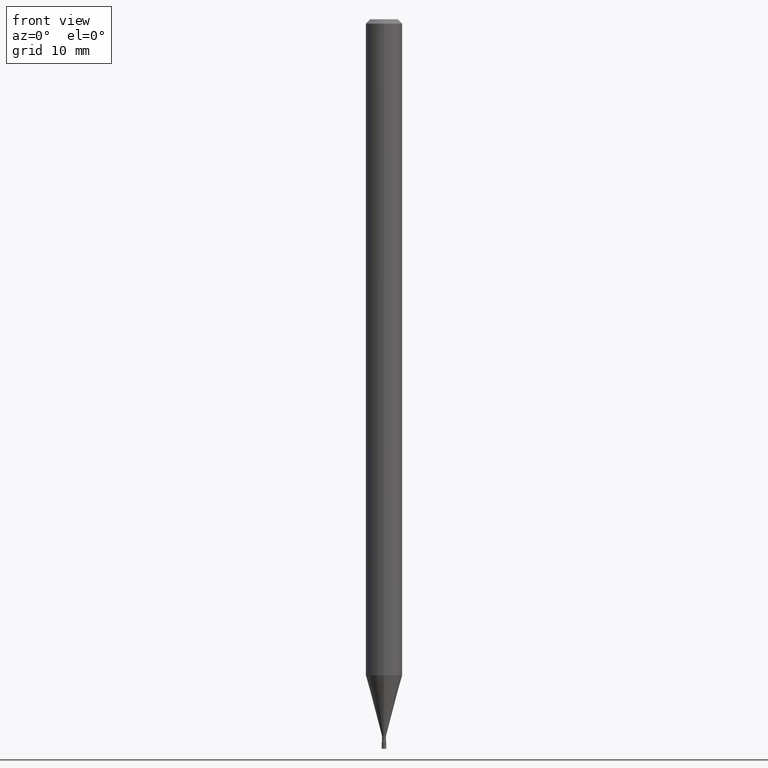
[diagram: clean part render]
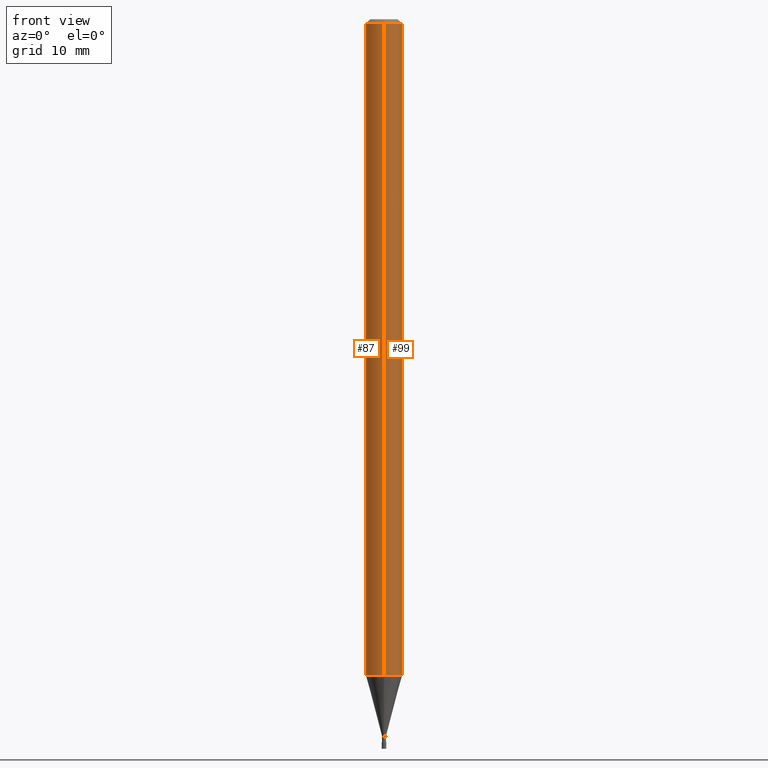
[diagram: same view with one multi-face feature highlighted, each face labeled with its STEP entity id]
A machine part, front view. The highlighted faces form ONE feature: a constant-radius fillet chain: 2 tangent blend faces with common blend radius 1.5875 mm. The faces share edges in the B-rep.
Their STEP definitions:
[1] entity #99 (Cylinder):
#3 = CARTESIAN_POINT ( 'NONE',  ( 4.440892098501173434E-16, 0.06249999999999213823, -2.248057782720306985 ) ) ;
#6 = CYLINDRICAL_SURFACE ( 'NONE', #94, 0.06250000000000000000 ) ;
#13 = CARTESIAN_POINT ( 'NONE',  ( 3.668098246410186119E-31, -5.237372321065141338E-17, -0.01500000000000003067 ) ) ;
#44 = DIRECTION ( 'NONE',  ( -2.445398830940119210E-29, 3.491581547376753841E-15, 1.000000000000000000 ) ) ;
#48 = DIRECTION ( 'NONE',  ( -2.445398830940119210E-29, 3.491581547376753841E-15, 1.000000000000000000 ) ) ;
#54 = ORIENTED_EDGE ( 'NONE', *, *, #194, .F. ) ;
#83 = DIRECTION ( 'NONE',  ( -6.982962677686265922E-15, -1.000000000000000000, 3.483106191921935554E-15 ) ) ;
#89 = VERTEX_POINT ( 'NONE', #444 ) ;
#94 = AXIS2_PLACEMENT_3D ( 'NONE', #329, #44, #201 ) ;
#96 = VECTOR ( 'NONE', #493, 39.37007874015748143 ) ;
#99 = ADVANCED_FACE ( 'NONE', ( #363 ), #6, .T. ) ;
#103 = VERTEX_POINT ( 'NONE', #3 ) ;
#115 = EDGE_LOOP ( 'NONE', ( #347, #348, #54, #239 ) ) ;
#119 = EDGE_CURVE ( 'NONE', #89, #103, #459, .T. ) ;
#135 = CIRCLE ( 'NONE', #142, 0.06250000000000000000 ) ;
#142 = AXIS2_PLACEMENT_3D ( 'NONE', #13, #211, #83 ) ;
#174 = EDGE_CURVE ( 'NONE', #89, #396, #447, .T. ) ;
#194 = EDGE_CURVE ( 'NONE', #396, #281, #135, .T. ) ;
#200 = EDGE_CURVE ( 'NONE', #103, #281, #412, .T. ) ;
#201 = DIRECTION ( 'NONE',  ( -6.982962677686265922E-15, -1.000000000000000000, 3.491581547376753447E-15 ) ) ;
#205 = AXIS2_PLACEMENT_3D ( 'NONE', #238, #278, #435 ) ;
#211 = DIRECTION ( 'NONE',  ( -2.445398830940119210E-29, 3.491581547376753841E-15, 1.000000000000000000 ) ) ;
#238 = CARTESIAN_POINT ( 'NONE',  ( 5.497397873750074245E-29, -7.849277071582922133E-15, -2.248057782720306541 ) ) ;
#239 = ORIENTED_EDGE ( 'NONE', *, *, #174, .F. ) ;
#278 = DIRECTION ( 'NONE',  ( -2.445398830940119210E-29, 3.491581547376753841E-15, 1.000000000000000000 ) ) ;
#281 = VERTEX_POINT ( 'NONE', #416 ) ;
#329 = CARTESIAN_POINT ( 'NONE',  ( 0.000000000000000000, 0.000000000000000000, 0.000000000000000000 ) ) ;
#331 = CARTESIAN_POINT ( 'NONE',  ( -4.364351673553916201E-16, -0.06250000000000000000, 2.182238467110470904E-16 ) ) ;
#334 = CARTESIAN_POINT ( 'NONE',  ( 4.440892098500625669E-16, 0.06250000000000000000, -2.182238467110470904E-16 ) ) ;
#347 = ORIENTED_EDGE ( 'NONE', *, *, #119, .T. ) ;
#348 = ORIENTED_EDGE ( 'NONE', *, *, #200, .T. ) ;
#363 = FACE_OUTER_BOUND ( 'NONE', #115, .T. ) ;
#396 = VERTEX_POINT ( 'NONE', #413 ) ;
#412 = LINE ( 'NONE', #334, #96 ) ;
#413 = CARTESIAN_POINT ( 'NONE',  ( -4.364351673553912750E-16, -0.06250000000000005551, -0.01499999999999981209 ) ) ;
#416 = CARTESIAN_POINT ( 'NONE',  ( 4.440892098501179350E-16, 0.06249999999999995837, -0.01500000000000024751 ) ) ;
#435 = DIRECTION ( 'NONE',  ( -6.982962677686265922E-15, -1.000000000000000000, 4.370956789862821150E-15 ) ) ;
#444 = CARTESIAN_POINT ( 'NONE',  ( -4.364351673553366464E-16, -0.06250000000000784095, -2.248057782720306097 ) ) ;
#445 = VECTOR ( 'NONE', #48, 39.37007874015748143 ) ;
#447 = LINE ( 'NONE', #331, #445 ) ;
#459 = CIRCLE ( 'NONE', #205, 0.06250000000000000000 ) ;
#493 = DIRECTION ( 'NONE',  ( -2.445398830940119210E-29, 3.491581547376753841E-15, 1.000000000000000000 ) ) ;
[2] entity #87 (Cylinder):
#3 = CARTESIAN_POINT ( 'NONE',  ( 4.440892098501173434E-16, 0.06249999999999213823, -2.248057782720306985 ) ) ;
#4 = DIRECTION ( 'NONE',  ( -6.982962677686265922E-15, -1.000000000000000000, 4.370956789862821150E-15 ) ) ;
#10 = AXIS2_PLACEMENT_3D ( 'NONE', #248, #484, #4 ) ;
#45 = DIRECTION ( 'NONE',  ( -2.445398830940119210E-29, 3.491581547376753841E-15, 1.000000000000000000 ) ) ;
#47 = ORIENTED_EDGE ( 'NONE', *, *, #154, .F. ) ;
#48 = DIRECTION ( 'NONE',  ( -2.445398830940119210E-29, 3.491581547376753841E-15, 1.000000000000000000 ) ) ;
#78 = CARTESIAN_POINT ( 'NONE',  ( 3.668098246410186119E-31, -5.237372321065141338E-17, -0.01500000000000003067 ) ) ;
#87 = ADVANCED_FACE ( 'NONE', ( #112 ), #405, .T. ) ;
#89 = VERTEX_POINT ( 'NONE', #444 ) ;
#96 = VECTOR ( 'NONE', #493, 39.37007874015748143 ) ;
#103 = VERTEX_POINT ( 'NONE', #3 ) ;
#112 = FACE_OUTER_BOUND ( 'NONE', #414, .T. ) ;
#150 = CIRCLE ( 'NONE', #290, 0.06250000000000000000 ) ;
#154 = EDGE_CURVE ( 'NONE', #281, #396, #150, .T. ) ;
#156 = DIRECTION ( 'NONE',  ( -2.445398830940119210E-29, 3.491581547376753841E-15, 1.000000000000000000 ) ) ;
#173 = ORIENTED_EDGE ( 'NONE', *, *, #174, .T. ) ;
#174 = EDGE_CURVE ( 'NONE', #89, #396, #447, .T. ) ;
#184 = AXIS2_PLACEMENT_3D ( 'NONE', #204, #156, #400 ) ;
#200 = EDGE_CURVE ( 'NONE', #103, #281, #412, .T. ) ;
#204 = CARTESIAN_POINT ( 'NONE',  ( 0.000000000000000000, 0.000000000000000000, 0.000000000000000000 ) ) ;
#217 = EDGE_CURVE ( 'NONE', #103, #89, #382, .T. ) ;
#240 = DIRECTION ( 'NONE',  ( -6.982962677686265922E-15, -1.000000000000000000, 3.483106191921935554E-15 ) ) ;
#248 = CARTESIAN_POINT ( 'NONE',  ( 5.497397873750074245E-29, -7.849277071582922133E-15, -2.248057782720306541 ) ) ;
#281 = VERTEX_POINT ( 'NONE', #416 ) ;
#290 = AXIS2_PLACEMENT_3D ( 'NONE', #78, #45, #240 ) ;
#331 = CARTESIAN_POINT ( 'NONE',  ( -4.364351673553916201E-16, -0.06250000000000000000, 2.182238467110470904E-16 ) ) ;
#334 = CARTESIAN_POINT ( 'NONE',  ( 4.440892098500625669E-16, 0.06250000000000000000, -2.182238467110470904E-16 ) ) ;
#382 = CIRCLE ( 'NONE', #10, 0.06250000000000000000 ) ;
#384 = ORIENTED_EDGE ( 'NONE', *, *, #200, .F. ) ;
#396 = VERTEX_POINT ( 'NONE', #413 ) ;
#400 = DIRECTION ( 'NONE',  ( -6.982962677686265922E-15, -1.000000000000000000, 3.491581547376753447E-15 ) ) ;
#405 = CYLINDRICAL_SURFACE ( 'NONE', #184, 0.06250000000000000000 ) ;
#412 = LINE ( 'NONE', #334, #96 ) ;
#413 = CARTESIAN_POINT ( 'NONE',  ( -4.364351673553912750E-16, -0.06250000000000005551, -0.01499999999999981209 ) ) ;
#414 = EDGE_LOOP ( 'NONE', ( #384, #511, #173, #47 ) ) ;
#416 = CARTESIAN_POINT ( 'NONE',  ( 4.440892098501179350E-16, 0.06249999999999995837, -0.01500000000000024751 ) ) ;
#444 = CARTESIAN_POINT ( 'NONE',  ( -4.364351673553366464E-16, -0.06250000000000784095, -2.248057782720306097 ) ) ;
#445 = VECTOR ( 'NONE', #48, 39.37007874015748143 ) ;
#447 = LINE ( 'NONE', #331, #445 ) ;
#484 = DIRECTION ( 'NONE',  ( -2.445398830940119210E-29, 3.491581547376753841E-15, 1.000000000000000000 ) ) ;
#493 = DIRECTION ( 'NONE',  ( -2.445398830940119210E-29, 3.491581547376753841E-15, 1.000000000000000000 ) ) ;
#511 = ORIENTED_EDGE ( 'NONE', *, *, #217, .T. ) ;